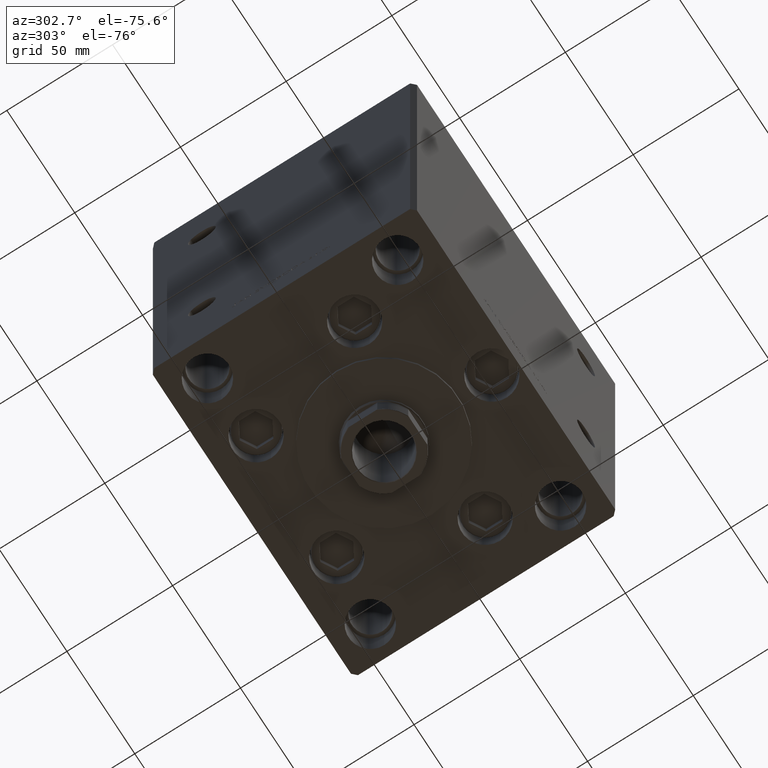
[diagram: clean part render]
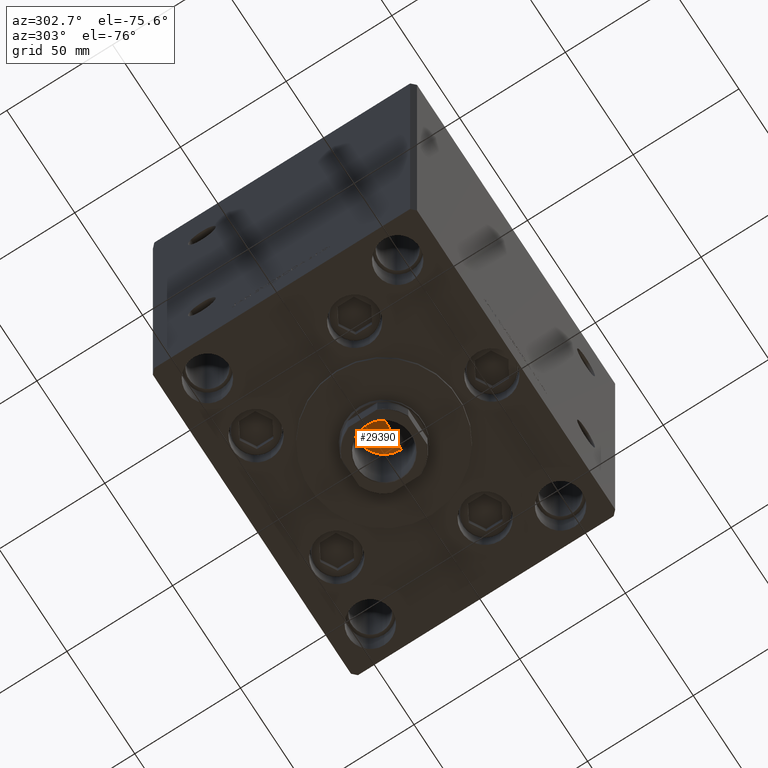
[diagram: same view with one face highlighted and labeled with its STEP entity id]
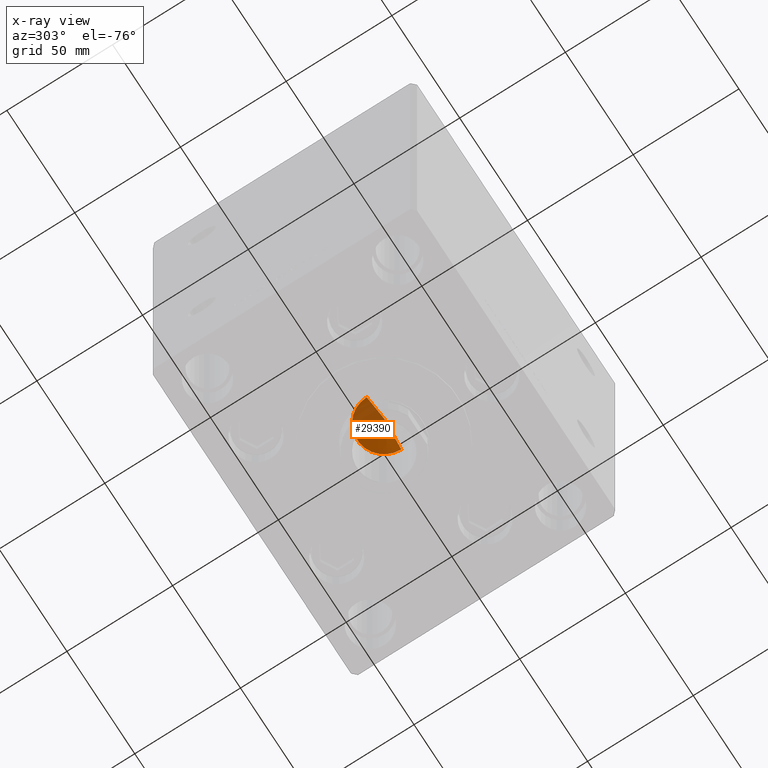
[diagram: x-ray of the same camera — body ghosted, the highlighted face saturated]
A machine part, auxiliary view. The second image highlights one B-rep face of the part: STEP entity #29390.
The next image is the same camera in x-ray: the body ghosted, the highlighted face saturated — about 35% of this face is hidden behind the body in this view.
In plain terms, the highlighted conical surface has half-angle 59 deg.
Its self-contained STEP definition (entity closure, byte-faithful):
#3190 = DIRECTION ( 'NONE',  ( -0.8571673007021125557, 1.049727191138618942E-16, 0.5150380749100536004 ) ) ;
#3834 = DIRECTION ( 'NONE',  ( -0.000000000000000000, -0.000000000000000000, 1.000000000000000000 ) ) ;
#5732 = DIRECTION ( 'NONE',  ( 1.000000000000000000, 0.000000000000000000, 0.000000000000000000 ) ) ;
#7418 = CARTESIAN_POINT ( 'NONE',  ( 0.000000000000000000, 0.000000000000000000, 137.5000000000000000 ) ) ;
#8659 = VERTEX_POINT ( 'NONE', #41214 ) ;
#9068 = DIRECTION ( 'NONE',  ( 0.8571673007021125557, 0.000000000000000000, 0.5150380749100536004 ) ) ;
#10510 = EDGE_CURVE ( 'NONE', #27735, #35988, #26106, .T. ) ;
#13868 = AXIS2_PLACEMENT_3D ( 'NONE', #7418, #3834, #34388 ) ;
#15822 = AXIS2_PLACEMENT_3D ( 'NONE', #25075, #40563, #5732 ) ;
#17193 = FACE_OUTER_BOUND ( 'NONE', #19939, .T. ) ;
#19939 = EDGE_LOOP ( 'NONE', ( #41744, #20112, #48997 ) ) ;
#20112 = ORIENTED_EDGE ( 'NONE', *, *, #49482, .T. ) ;
#23888 = CARTESIAN_POINT ( 'NONE',  ( -1.307202896762960287E-14, 0.000000000000000000, 129.8390271073986355 ) ) ;
#25075 = CARTESIAN_POINT ( 'NONE',  ( 0.000000000000000000, 0.000000000000000000, 137.5000000000000000 ) ) ;
#26106 = LINE ( 'NONE', #26357, #34840 ) ;
#26357 = CARTESIAN_POINT ( 'NONE',  ( -12.74999999999999112, 1.561424668912874125E-15, 137.5000000000000000 ) ) ;
#27735 = VERTEX_POINT ( 'NONE', #23888 ) ;
#29390 = ADVANCED_FACE ( 'NONE', ( #17193 ), #45876, .F. ) ;
#31979 = LINE ( 'NONE', #43889, #46404 ) ;
#33359 = CIRCLE ( 'NONE', #13868, 12.74999999999999112 ) ;
#34388 = DIRECTION ( 'NONE',  ( 1.000000000000000000, 0.000000000000000000, 0.000000000000000000 ) ) ;
#34840 = VECTOR ( 'NONE', #3190, 1000.000000000000114 ) ;
#35988 = VERTEX_POINT ( 'NONE', #49501 ) ;
#40563 = DIRECTION ( 'NONE',  ( -0.000000000000000000, -0.000000000000000000, 1.000000000000000000 ) ) ;
#41214 = CARTESIAN_POINT ( 'NONE',  ( 12.74999999999999112, 0.000000000000000000, 137.5000000000000000 ) ) ;
#41744 = ORIENTED_EDGE ( 'NONE', *, *, #10510, .F. ) ;
#43889 = CARTESIAN_POINT ( 'NONE',  ( 12.74999999999999112, 0.000000000000000000, 137.5000000000000000 ) ) ;
#45876 = CONICAL_SURFACE ( 'NONE', #15822, 12.74999999999999112, 1.029744258676655200 ) ;
#46404 = VECTOR ( 'NONE', #9068, 1000.000000000000114 ) ;
#47772 = EDGE_CURVE ( 'NONE', #8659, #35988, #33359, .T. ) ;
#48997 = ORIENTED_EDGE ( 'NONE', *, *, #47772, .T. ) ;
#49482 = EDGE_CURVE ( 'NONE', #27735, #8659, #31979, .T. ) ;
#49501 = CARTESIAN_POINT ( 'NONE',  ( -12.74999999999999112, 1.561424668912874125E-15, 137.5000000000000000 ) ) ;